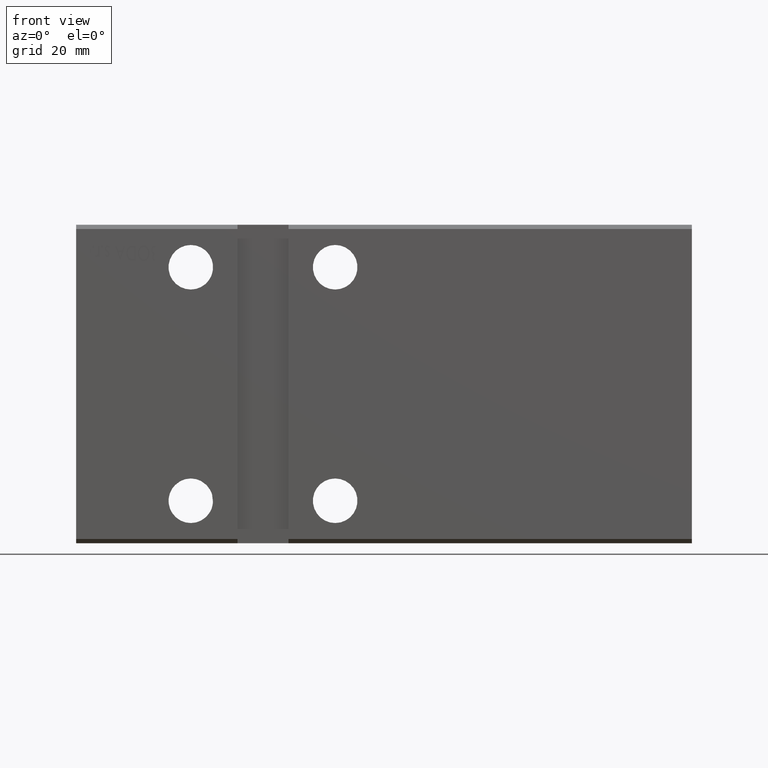
[diagram: clean part render]
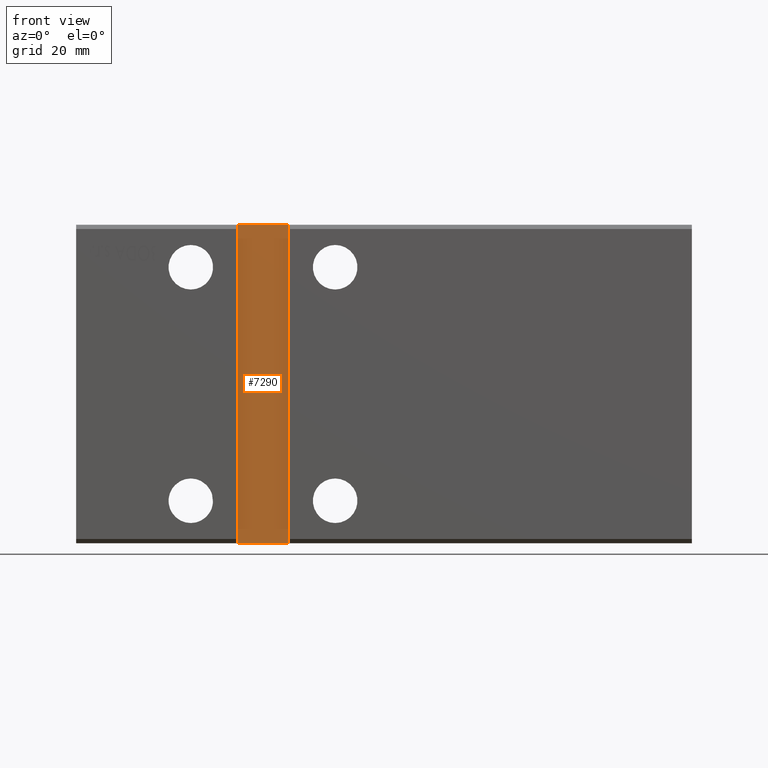
[diagram: same view with one face highlighted and labeled with its STEP entity id]
A machine part, front view. The second image highlights one B-rep face of the part: STEP entity #7290.
In plain terms, the highlighted planar face has unit normal (0, -1, -0).
Its self-contained STEP definition (entity closure, byte-faithful):
#2534 = CARTESIAN_POINT ( 'NONE',  ( 38.00000000000000000, -25.50000000000000711, 37.50000000000000711 ) ) ;
#3818 = LINE ( 'NONE', #13376, #4497 ) ;
#4497 = VECTOR ( 'NONE', #16168, 1000.000000000000000 ) ;
#5797 = CARTESIAN_POINT ( 'NONE',  ( 49.99999999999999289, -25.50000000000000711, 37.50000000000000711 ) ) ;
#6388 = ORIENTED_EDGE ( 'NONE', *, *, #19232, .T. ) ;
#6439 = LINE ( 'NONE', #27949, #17840 ) ;
#7290 = ADVANCED_FACE ( 'NONE', ( #29319 ), #20911, .T. ) ;
#9718 = ORIENTED_EDGE ( 'NONE', *, *, #33191, .T. ) ;
#12117 = ORIENTED_EDGE ( 'NONE', *, *, #19839, .T. ) ;
#12691 = CARTESIAN_POINT ( 'NONE',  ( 49.99999999999999289, -25.50000000000000711, 37.50000000000000711 ) ) ;
#13376 = CARTESIAN_POINT ( 'NONE',  ( 38.00000000000002132, -25.50000000000000355, -37.49999999999999289 ) ) ;
#14543 = CARTESIAN_POINT ( 'NONE',  ( 0.000000000000000000, -25.50000000000000355, -2.434119925021425278E-15 ) ) ;
#16084 = EDGE_LOOP ( 'NONE', ( #6388, #12117, #33433, #9718 ) ) ;
#16168 = DIRECTION ( 'NONE',  ( 1.000000000000000000, 0.000000000000000000, 0.000000000000000000 ) ) ;
#17840 = VECTOR ( 'NONE', #39341, 1000.000000000000000 ) ;
#18625 = CARTESIAN_POINT ( 'NONE',  ( 38.00000000000002132, -25.50000000000000355, -37.49999999999999289 ) ) ;
#19059 = LINE ( 'NONE', #12691, #32497 ) ;
#19232 = EDGE_CURVE ( 'NONE', #30284, #26440, #19059, .T. ) ;
#19823 = VECTOR ( 'NONE', #27588, 1000.000000000000000 ) ;
#19839 = EDGE_CURVE ( 'NONE', #26440, #28421, #6439, .T. ) ;
#20911 = PLANE ( 'NONE',  #39257 ) ;
#21211 = CARTESIAN_POINT ( 'NONE',  ( 38.00000000000000000, -25.50000000000000711, 37.50000000000000711 ) ) ;
#21406 = LINE ( 'NONE', #21211, #19823 ) ;
#23315 = VERTEX_POINT ( 'NONE', #18625 ) ;
#24209 = CARTESIAN_POINT ( 'NONE',  ( 49.99999999999999289, -25.50000000000000355, -37.49999999999999289 ) ) ;
#26440 = VERTEX_POINT ( 'NONE', #5797 ) ;
#27588 = DIRECTION ( 'NONE',  ( 2.775557561562891351E-16, 9.251858538542971581E-17, -1.000000000000000000 ) ) ;
#27949 = CARTESIAN_POINT ( 'NONE',  ( 38.00000000000000000, -25.50000000000000711, 37.50000000000000711 ) ) ;
#28421 = VERTEX_POINT ( 'NONE', #2534 ) ;
#29319 = FACE_OUTER_BOUND ( 'NONE', #16084, .T. ) ;
#30264 = EDGE_CURVE ( 'NONE', #28421, #23315, #21406, .T. ) ;
#30284 = VERTEX_POINT ( 'NONE', #24209 ) ;
#30297 = DIRECTION ( 'NONE',  ( 0.000000000000000000, -1.000000000000000000, -9.251858538542971581E-17 ) ) ;
#32497 = VECTOR ( 'NONE', #33650, 1000.000000000000000 ) ;
#33191 = EDGE_CURVE ( 'NONE', #23315, #30284, #3818, .T. ) ;
#33433 = ORIENTED_EDGE ( 'NONE', *, *, #30264, .T. ) ;
#33650 = DIRECTION ( 'NONE',  ( -0.000000000000000000, -9.251858538542971581E-17, 1.000000000000000000 ) ) ;
#39257 = AXIS2_PLACEMENT_3D ( 'NONE', #14543, #30297, #39461 ) ;
#39341 = DIRECTION ( 'NONE',  ( -1.000000000000000000, -0.000000000000000000, -0.000000000000000000 ) ) ;
#39461 = DIRECTION ( 'NONE',  ( 0.000000000000000000, 9.251858538542971581E-17, -1.000000000000000000 ) ) ;